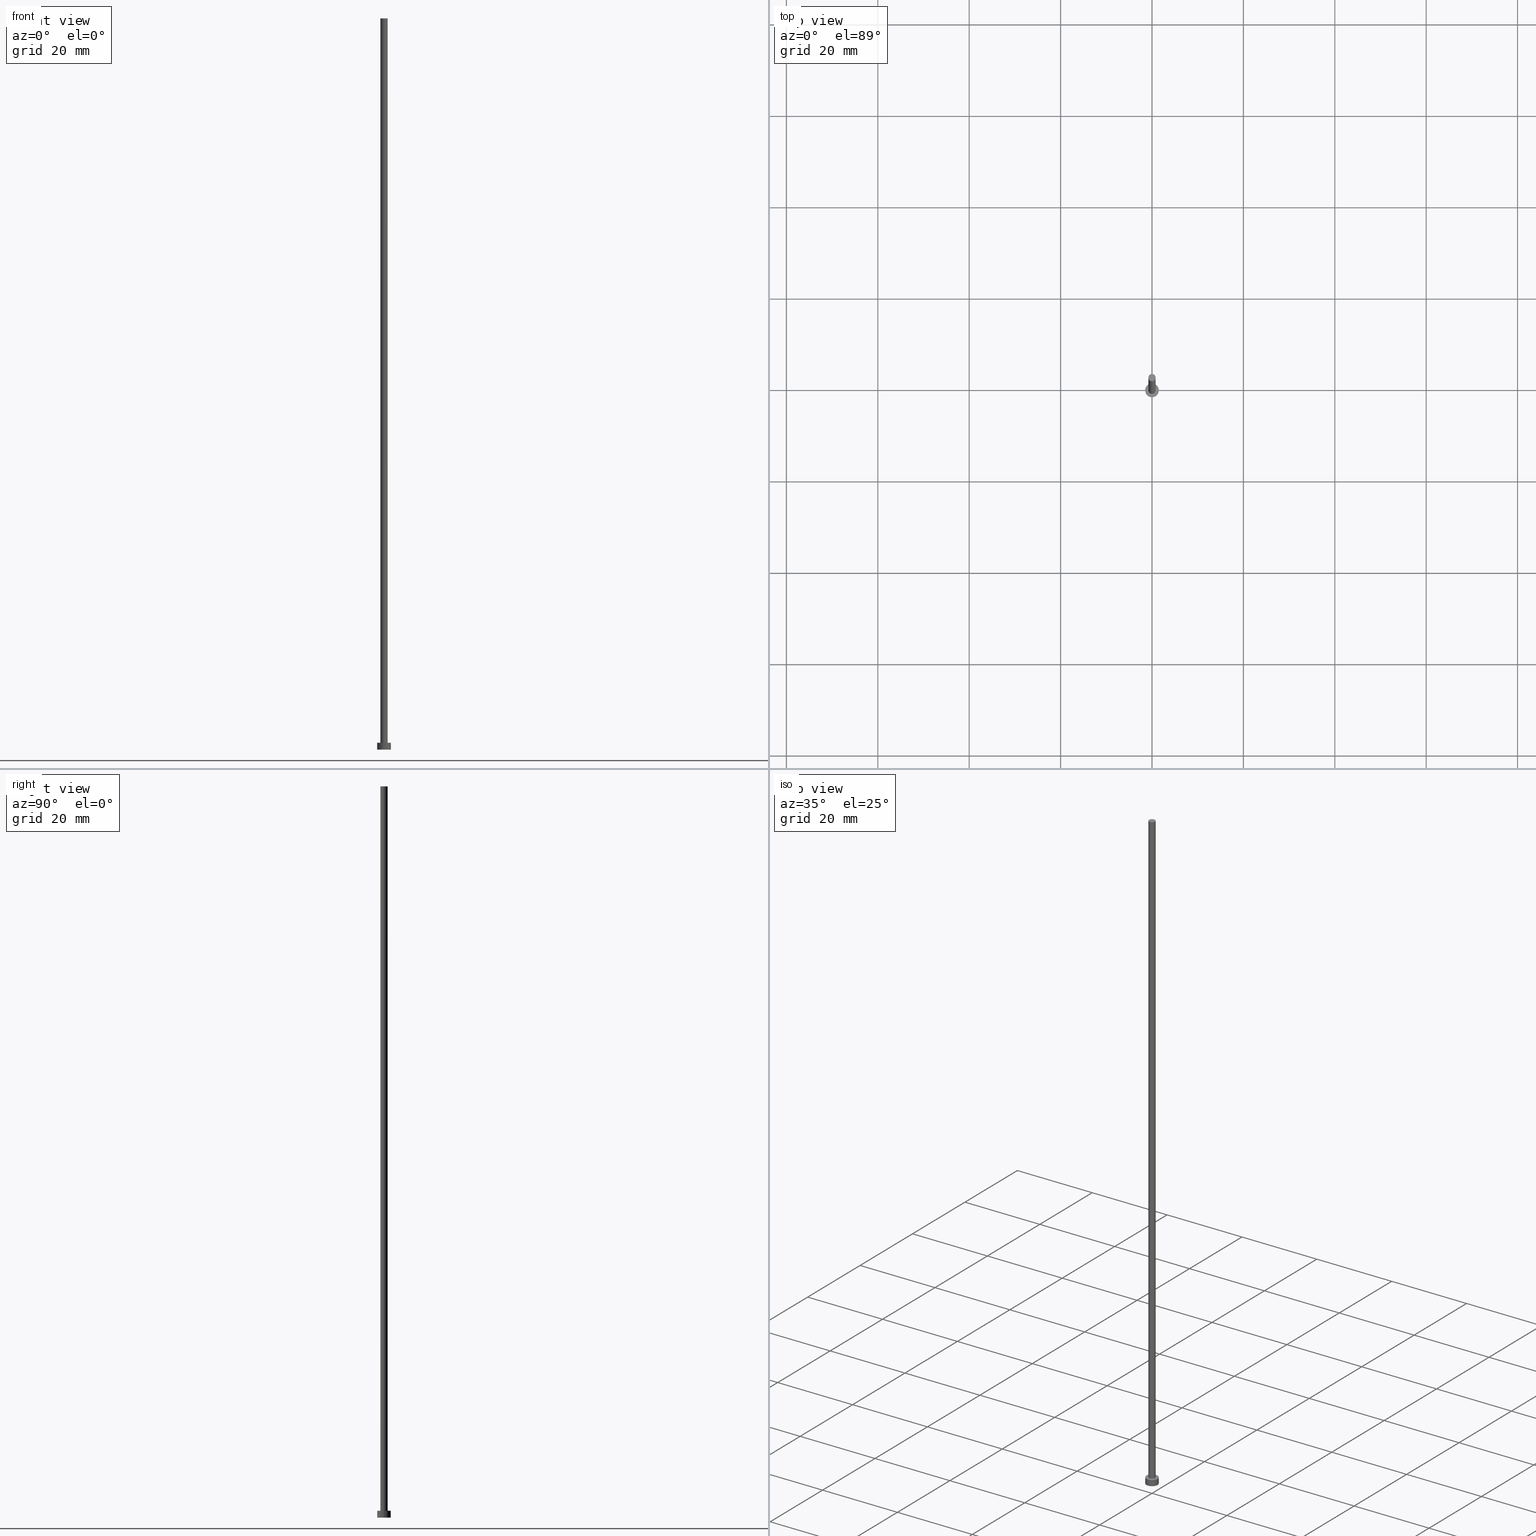
[diagram: canonical four-view strip — front | top / right | iso, engineering-drawing reading convention]
A machine part, canonical four-view strip (front | top / right | iso — engineering-drawing reading convention). The complete STEP part file that produces these views, byte-faithful:
ISO-10303-21;
HEADER;
FILE_DESCRIPTION (( 'STEP AP203' ),
    '1' );
FILE_NAME ('dc04.STEP',
    '2023-02-13T14:58:21',
    ( '' ),
    ( '' ),
    'SwSTEP 2.0',
    'SolidWorks 2019',
    '' );
FILE_SCHEMA (( 'CONFIG_CONTROL_DESIGN' ));
ENDSEC;

DATA;
#1 = CARTESIAN_POINT ( 'NONE',  ( 1.500000000000000222, 1.836970198721030181E-16, 1.500000000000000000 ) ) ;
#2 = ORIENTED_EDGE ( 'NONE', *, *, #228, .F. ) ;
#3 = EDGE_CURVE ( 'NONE', #226, #11, #110, .T. ) ;
#4 = DIRECTION ( 'NONE',  ( 1.000000000000000000, 0.000000000000000000, 0.000000000000000000 ) ) ;
#5 = EDGE_LOOP ( 'NONE', ( #200, #175 ) ) ;
#6 = DIRECTION ( 'NONE',  ( 0.000000000000000000, 0.000000000000000000, 1.000000000000000000 ) ) ;
#7 = PERSON_AND_ORGANIZATION ( #183, #17 ) ;
#8 = AXIS2_PLACEMENT_3D ( 'NONE', #168, #65, #250 ) ;
#9 = CARTESIAN_POINT ( 'NONE',  ( 0.000000000000000000, 0.000000000000000000, 1.500000000000000000 ) ) ;
#10 = EDGE_LOOP ( 'NONE', ( #89, #101, #91, #28 ) ) ;
#11 = VERTEX_POINT ( 'NONE', #165 ) ;
#12 = CARTESIAN_POINT ( 'NONE',  ( 0.000000000000000000, 0.000000000000000000, 1.500000000000000000 ) ) ;
#13 = EDGE_LOOP ( 'NONE', ( #237, #205, #172, #26 ) ) ;
#14 = ADVANCED_FACE ( 'NONE', ( #19 ), #182, .T. ) ;
#15 = ADVANCED_BREP_SHAPE_REPRESENTATION ( 'dc04', ( #16, #44 ), #73 ) ;
#16 = MANIFOLD_SOLID_BREP ( 'P�idat vysunut�m3', #222 ) ;
#17 = ORGANIZATION ( 'NEUR�EN�', 'NEUR�EN�', '' ) ;
#18 = DATE_AND_TIME ( #154, #100 ) ;
#19 = FACE_OUTER_BOUND ( 'NONE', #10, .T. ) ;
#20 = CIRCLE ( 'NONE', #174, 0.8000000000000000444 ) ;
#21 = APPROVAL_DATE_TIME ( #108, #109 ) ;
#22 = CARTESIAN_POINT ( 'NONE',  ( 0.000000000000000000, 0.000000000000000000, 160.0000000000000000 ) ) ;
#23 = EDGE_CURVE ( 'NONE', #11, #226, #248, .T. ) ;
#24 = DIRECTION ( 'NONE',  ( 0.000000000000000000, 0.000000000000000000, 1.000000000000000000 ) ) ;
#25 = APPLICATION_PROTOCOL_DEFINITION ( 'international standard', 'config_control_design', 1994, #232 ) ;
#26 = ORIENTED_EDGE ( 'NONE', *, *, #161, .F. ) ;
#27 =( LENGTH_UNIT ( ) NAMED_UNIT ( * ) SI_UNIT ( .MILLI., .METRE. ) );
#28 = ORIENTED_EDGE ( 'NONE', *, *, #208, .F. ) ;
#29 = ADVANCED_FACE ( 'NONE', ( #96 ), #177, .T. ) ;
#30 = CARTESIAN_POINT ( 'NONE',  ( 0.8000000000000000444, 9.797174393178826150E-17, 160.0000000000000000 ) ) ;
#31 = ORIENTED_EDGE ( 'NONE', *, *, #233, .F. ) ;
#32 = CARTESIAN_POINT ( 'NONE',  ( 0.000000000000000000, 0.000000000000000000, 160.0000000000000000 ) ) ;
#33 = LINE ( 'NONE', #72, #209 ) ;
#34 = VERTEX_POINT ( 'NONE', #156 ) ;
#35 = VERTEX_POINT ( 'NONE', #90 ) ;
#36 = DIRECTION ( 'NONE',  ( 1.000000000000000000, 0.000000000000000000, 0.000000000000000000 ) ) ;
#37 = ORIENTED_EDGE ( 'NONE', *, *, #3, .F. ) ;
#38 = DIRECTION ( 'NONE',  ( 0.000000000000000000, 0.000000000000000000, 1.000000000000000000 ) ) ;
#39 = CC_DESIGN_DATE_AND_TIME_ASSIGNMENT ( #238, #50, ( #253 ) ) ;
#40 = CALENDAR_DATE ( 2023, 13, 2 ) ;
#41 = COORDINATED_UNIVERSAL_TIME_OFFSET ( 1, 0, .AHEAD. ) ;
#42 = PERSON_AND_ORGANIZATION_ROLE ( 'creator' ) ;
#43 = VECTOR ( 'NONE', #140, 1000.000000000000000 ) ;
#44 = AXIS2_PLACEMENT_3D ( 'NONE', #57, #157, #150 ) ;
#45 = PERSON_AND_ORGANIZATION ( #183, #17 ) ;
#46 = CARTESIAN_POINT ( 'NONE',  ( 0.8000000000000000444, 9.797174393178826150E-17, 1.500000000000000000 ) ) ;
#47 = DIRECTION ( 'NONE',  ( -1.000000000000000000, 0.000000000000000000, 0.000000000000000000 ) ) ;
#48 = PRODUCT ( 'dc04', 'dc04', '', ( #210 ) ) ;
#49 = EDGE_CURVE ( 'NONE', #34, #119, #20, .T. ) ;
#50 = DATE_TIME_ROLE ( 'classification_date' ) ;
#51 = AXIS2_PLACEMENT_3D ( 'NONE', #54, #230, #135 ) ;
#52 = COORDINATED_UNIVERSAL_TIME_OFFSET ( 1, 0, .AHEAD. ) ;
#53 = CC_DESIGN_PERSON_AND_ORGANIZATION_ASSIGNMENT ( #139, #229, ( #113 ) ) ;
#54 = CARTESIAN_POINT ( 'NONE',  ( 0.000000000000000000, 0.000000000000000000, 1.500000000000000000 ) ) ;
#55 = COORDINATED_UNIVERSAL_TIME_OFFSET ( 1, 0, .AHEAD. ) ;
#56 = DIRECTION ( 'NONE',  ( 1.000000000000000000, 0.000000000000000000, 0.000000000000000000 ) ) ;
#57 = CARTESIAN_POINT ( 'NONE',  ( 0.000000000000000000, 0.000000000000000000, 0.000000000000000000 ) ) ;
#58 = AXIS2_PLACEMENT_3D ( 'NONE', #22, #97, #56 ) ;
#59 = AXIS2_PLACEMENT_3D ( 'NONE', #114, #187, #198 ) ;
#60 = FACE_BOUND ( 'NONE', #207, .T. ) ;
#61 = CC_DESIGN_APPROVAL ( #118, ( #113 ) ) ;
#62 = DIRECTION ( 'NONE',  ( -0.000000000000000000, -0.000000000000000000, -1.000000000000000000 ) ) ;
#63 = CC_DESIGN_PERSON_AND_ORGANIZATION_ASSIGNMENT ( #220, #124, ( #253 ) ) ;
#64 = FACE_OUTER_BOUND ( 'NONE', #129, .T. ) ;
#65 = DIRECTION ( 'NONE',  ( 0.000000000000000000, 0.000000000000000000, 1.000000000000000000 ) ) ;
#66 = VERTEX_POINT ( 'NONE', #30 ) ;
#67 = ORIENTED_EDGE ( 'NONE', *, *, #23, .T. ) ;
#68 = ADVANCED_FACE ( 'NONE', ( #122 ), #197, .F. ) ;
#69 = PLANE ( 'NONE',  #217 ) ;
#70 = CIRCLE ( 'NONE', #116, 1.500000000000000222 ) ;
#71 = DIRECTION ( 'NONE',  ( 0.000000000000000000, 0.000000000000000000, 1.000000000000000000 ) ) ;
#72 = CARTESIAN_POINT ( 'NONE',  ( 0.8000000000000000444, 9.797174393178826150E-17, 160.0000000000000000 ) ) ;
#73 =( GEOMETRIC_REPRESENTATION_CONTEXT ( 3 ) GLOBAL_UNCERTAINTY_ASSIGNED_CONTEXT ( ( #131 ) ) GLOBAL_UNIT_ASSIGNED_CONTEXT ( ( #27, #178, #218 ) ) REPRESENTATION_CONTEXT ( 'NONE', 'WORKASPACE' ) );
#74 = APPROVAL_ROLE ( '' ) ;
#75 = AXIS2_PLACEMENT_3D ( 'NONE', #93, #71, #147 ) ;
#76 = ORIENTED_EDGE ( 'NONE', *, *, #3, .T. ) ;
#77 = LINE ( 'NONE', #105, #43 ) ;
#78 = CIRCLE ( 'NONE', #121, 0.8000000000000000444 ) ;
#79 = ORIENTED_EDGE ( 'NONE', *, *, #151, .T. ) ;
#80 = PRODUCT_RELATED_PRODUCT_CATEGORY ( 'detail', '', ( #48 ) ) ;
#81 = CALENDAR_DATE ( 2023, 13, 2 ) ;
#82 = DATE_AND_TIME ( #81, #185 ) ;
#83 = LOCAL_TIME ( 15, 58, 21.00000000000000000, #221 ) ;
#84 = CARTESIAN_POINT ( 'NONE',  ( 0.000000000000000000, 0.000000000000000000, 160.0000000000000000 ) ) ;
#85 = DIRECTION ( 'NONE',  ( -1.000000000000000000, 0.000000000000000000, 0.000000000000000000 ) ) ;
#86 = DIRECTION ( 'NONE',  ( 1.000000000000000000, 0.000000000000000000, 0.000000000000000000 ) ) ;
#87 = AXIS2_PLACEMENT_3D ( 'NONE', #255, #6, #4 ) ;
#88 = PERSON_AND_ORGANIZATION_ROLE ( 'design_owner' ) ;
#89 = ORIENTED_EDGE ( 'NONE', *, *, #245, .F. ) ;
#90 = CARTESIAN_POINT ( 'NONE',  ( -0.8000000000000000444, 0.000000000000000000, 160.0000000000000000 ) ) ;
#91 = ORIENTED_EDGE ( 'NONE', *, *, #228, .T. ) ;
#92 = CALENDAR_DATE ( 2023, 13, 2 ) ;
#93 = CARTESIAN_POINT ( 'NONE',  ( 0.000000000000000000, 0.000000000000000000, 0.000000000000000000 ) ) ;
#94 = ORIENTED_EDGE ( 'NONE', *, *, #164, .F. ) ;
#95 = CC_DESIGN_SECURITY_CLASSIFICATION ( #253, ( #202 ) ) ;
#96 = FACE_OUTER_BOUND ( 'NONE', #212, .T. ) ;
#97 = DIRECTION ( 'NONE',  ( 0.000000000000000000, 0.000000000000000000, 1.000000000000000000 ) ) ;
#98 = DIRECTION ( 'NONE',  ( 0.000000000000000000, 0.000000000000000000, 1.000000000000000000 ) ) ;
#99 = DIRECTION ( 'NONE',  ( 0.000000000000000000, 0.000000000000000000, 1.000000000000000000 ) ) ;
#100 = LOCAL_TIME ( 15, 58, 21.00000000000000000, #55 ) ;
#101 = ORIENTED_EDGE ( 'NONE', *, *, #127, .T. ) ;
#102 = PRODUCT_DEFINITION_SHAPE ( 'NONE', 'NONE',  #113 ) ;
#103 = ADVANCED_FACE ( 'NONE', ( #169 ), #104, .T. ) ;
#104 = CYLINDRICAL_SURFACE ( 'NONE', #51, 1.500000000000000222 ) ;
#105 = CARTESIAN_POINT ( 'NONE',  ( -0.8000000000000000444, 0.000000000000000000, 160.0000000000000000 ) ) ;
#106 = CC_DESIGN_PERSON_AND_ORGANIZATION_ASSIGNMENT ( #188, #88, ( #48 ) ) ;
#107 = ORIENTED_EDGE ( 'NONE', *, *, #245, .T. ) ;
#108 = DATE_AND_TIME ( #40, #160 ) ;
#109 = APPROVAL ( #133, 'NEUR�EN�' ) ;
#110 = CIRCLE ( 'NONE', #87, 1.500000000000000222 ) ;
#111 = APPROVAL_ROLE ( '' ) ;
#112 = EDGE_LOOP ( 'NONE', ( #192, #31, #173, #247 ) ) ;
#113 = PRODUCT_DEFINITION ( 'NEZN�M�', '', #202, #203 ) ;
#114 = CARTESIAN_POINT ( 'NONE',  ( 0.000000000000000000, 0.000000000000000000, 0.000000000000000000 ) ) ;
#115 = CARTESIAN_POINT ( 'NONE',  ( 0.000000000000000000, 0.000000000000000000, 160.0000000000000000 ) ) ;
#116 = AXIS2_PLACEMENT_3D ( 'NONE', #225, #38, #36 ) ;
#117 = CC_DESIGN_APPROVAL ( #138, ( #253 ) ) ;
#118 = APPROVAL ( #244, 'NEUR�EN�' ) ;
#119 = VERTEX_POINT ( 'NONE', #46 ) ;
#120 = DIRECTION ( 'NONE',  ( 1.000000000000000000, 0.000000000000000000, 0.000000000000000000 ) ) ;
#121 = AXIS2_PLACEMENT_3D ( 'NONE', #32, #24, #120 ) ;
#122 = FACE_OUTER_BOUND ( 'NONE', #5, .T. ) ;
#123 = CARTESIAN_POINT ( 'NONE',  ( -1.500000000000000222, 0.000000000000000000, 1.500000000000000000 ) ) ;
#124 = PERSON_AND_ORGANIZATION_ROLE ( 'classification_officer' ) ;
#125 = CARTESIAN_POINT ( 'NONE',  ( 0.000000000000000000, 0.000000000000000000, 160.0000000000000000 ) ) ;
#126 = LOCAL_TIME ( 15, 58, 21.00000000000000000, #214 ) ;
#127 = EDGE_CURVE ( 'NONE', #66, #119, #33, .T. ) ;
#128 = LINE ( 'NONE', #1, #134 ) ;
#129 = EDGE_LOOP ( 'NONE', ( #76, #67 ) ) ;
#130 = AXIS2_PLACEMENT_3D ( 'NONE', #115, #152, #85 ) ;
#131 = UNCERTAINTY_MEASURE_WITH_UNIT (LENGTH_MEASURE( 1.000000000000000082E-05 ), #27, 'distance_accuracy_value', 'NONE');
#132 = APPROVAL_PERSON_ORGANIZATION ( #45, #118, #186 ) ;
#133 = APPROVAL_STATUS ( 'not_yet_approved' ) ;
#134 = VECTOR ( 'NONE', #204, 1000.000000000000000 ) ;
#135 = DIRECTION ( 'NONE',  ( -1.000000000000000000, 0.000000000000000000, 0.000000000000000000 ) ) ;
#136 = CIRCLE ( 'NONE', #195, 0.8000000000000000444 ) ;
#137 = APPLICATION_CONTEXT ( 'configuration controlled 3d designs of mechanical parts and assemblies' ) ;
#138 = APPROVAL ( #201, 'NEUR�EN�' ) ;
#139 = PERSON_AND_ORGANIZATION ( #183, #17 ) ;
#140 = DIRECTION ( 'NONE',  ( -0.000000000000000000, -0.000000000000000000, -1.000000000000000000 ) ) ;
#141 = DATE_AND_TIME ( #92, #126 ) ;
#142 = DIRECTION ( 'NONE',  ( 1.000000000000000000, 0.000000000000000000, 0.000000000000000000 ) ) ;
#143 = DIRECTION ( 'NONE',  ( 0.000000000000000000, 0.000000000000000000, 1.000000000000000000 ) ) ;
#144 = LINE ( 'NONE', #251, #239 ) ;
#145 = SECURITY_CLASSIFICATION_LEVEL ( 'unclassified' ) ;
#146 = APPROVAL_DATE_TIME ( #141, #138 ) ;
#147 = DIRECTION ( 'NONE',  ( 1.000000000000000000, 0.000000000000000000, -0.000000000000000000 ) ) ;
#148 = AXIS2_PLACEMENT_3D ( 'NONE', #125, #99, #179 ) ;
#149 = SHAPE_DEFINITION_REPRESENTATION ( #102, #15 ) ;
#150 = DIRECTION ( 'NONE',  ( 1.000000000000000000, 0.000000000000000000, 0.000000000000000000 ) ) ;
#151 = EDGE_CURVE ( 'NONE', #252, #215, #70, .T. ) ;
#152 = DIRECTION ( 'NONE',  ( -0.000000000000000000, -0.000000000000000000, -1.000000000000000000 ) ) ;
#153 = ORIENTED_EDGE ( 'NONE', *, *, #233, .T. ) ;
#154 = CALENDAR_DATE ( 2023, 13, 2 ) ;
#155 = CC_DESIGN_APPROVAL ( #109, ( #202 ) ) ;
#156 = CARTESIAN_POINT ( 'NONE',  ( -0.8000000000000000444, 0.000000000000000000, 1.500000000000000000 ) ) ;
#157 = DIRECTION ( 'NONE',  ( 0.000000000000000000, 0.000000000000000000, 1.000000000000000000 ) ) ;
#158 = CARTESIAN_POINT ( 'NONE',  ( 0.000000000000000000, 0.000000000000000000, 1.500000000000000000 ) ) ;
#159 = FACE_OUTER_BOUND ( 'NONE', #249, .T. ) ;
#160 = LOCAL_TIME ( 15, 58, 21.00000000000000000, #52 ) ;
#161 = EDGE_CURVE ( 'NONE', #226, #252, #144, .T. ) ;
#162 = ADVANCED_FACE ( 'NONE', ( #159 ), #236, .T. ) ;
#163 = APPROVAL_PERSON_ORGANIZATION ( #242, #109, #111 ) ;
#164 = EDGE_CURVE ( 'NONE', #11, #215, #128, .T. ) ;
#165 = CARTESIAN_POINT ( 'NONE',  ( 1.500000000000000222, 1.836970198721030181E-16, 1.500000000000000000 ) ) ;
#166 = AXIS2_PLACEMENT_3D ( 'NONE', #84, #227, #180 ) ;
#167 = DATE_TIME_ROLE ( 'creation_date' ) ;
#168 = CARTESIAN_POINT ( 'NONE',  ( 0.000000000000000000, 0.000000000000000000, 1.500000000000000000 ) ) ;
#169 = FACE_OUTER_BOUND ( 'NONE', #13, .T. ) ;
#170 = CYLINDRICAL_SURFACE ( 'NONE', #166, 0.8000000000000000444 ) ;
#171 = CARTESIAN_POINT ( 'NONE',  ( 1.500000000000000222, 1.836970198721030181E-16, 0.000000000000000000 ) ) ;
#172 = ORIENTED_EDGE ( 'NONE', *, *, #241, .T. ) ;
#173 = ORIENTED_EDGE ( 'NONE', *, *, #208, .T. ) ;
#174 = AXIS2_PLACEMENT_3D ( 'NONE', #158, #213, #142 ) ;
#175 = ORIENTED_EDGE ( 'NONE', *, *, #241, .F. ) ;
#176 = ADVANCED_FACE ( 'NONE', ( #193 ), #170, .T. ) ;
#177 = CYLINDRICAL_SURFACE ( 'NONE', #189, 1.500000000000000222 ) ;
#178 =( NAMED_UNIT ( * ) PLANE_ANGLE_UNIT ( ) SI_UNIT ( $, .RADIAN. ) );
#179 = DIRECTION ( 'NONE',  ( 1.000000000000000000, 0.000000000000000000, -0.000000000000000000 ) ) ;
#180 = DIRECTION ( 'NONE',  ( -1.000000000000000000, 0.000000000000000000, 0.000000000000000000 ) ) ;
#181 = CIRCLE ( 'NONE', #59, 1.500000000000000222 ) ;
#182 = CYLINDRICAL_SURFACE ( 'NONE', #130, 0.8000000000000000444 ) ;
#183 = PERSON ( 'NEUR�EN�', 'NEUR�EN�', 'NEUR�EN�', ('NEUR�EN�'), ('NEUR�EN�'), ('NEUR�EN�') ) ;
#184 = CC_DESIGN_DATE_AND_TIME_ASSIGNMENT ( #18, #167, ( #113 ) ) ;
#185 = LOCAL_TIME ( 15, 58, 21.00000000000000000, #41 ) ;
#186 = APPROVAL_ROLE ( '' ) ;
#187 = DIRECTION ( 'NONE',  ( 0.000000000000000000, 0.000000000000000000, 1.000000000000000000 ) ) ;
#188 = PERSON_AND_ORGANIZATION ( #183, #17 ) ;
#189 = AXIS2_PLACEMENT_3D ( 'NONE', #9, #62, #47 ) ;
#190 = ORIENTED_EDGE ( 'NONE', *, *, #49, .F. ) ;
#191 = ORIENTED_EDGE ( 'NONE', *, *, #161, .T. ) ;
#192 = ORIENTED_EDGE ( 'NONE', *, *, #127, .F. ) ;
#193 = FACE_OUTER_BOUND ( 'NONE', #112, .T. ) ;
#194 = DIRECTION ( 'NONE',  ( 1.000000000000000000, 0.000000000000000000, -0.000000000000000000 ) ) ;
#195 = AXIS2_PLACEMENT_3D ( 'NONE', #216, #143, #86 ) ;
#196 = PERSON_AND_ORGANIZATION_ROLE ( 'design_supplier' ) ;
#197 = PLANE ( 'NONE',  #75 ) ;
#198 = DIRECTION ( 'NONE',  ( 1.000000000000000000, 0.000000000000000000, 0.000000000000000000 ) ) ;
#199 = CALENDAR_DATE ( 2023, 13, 2 ) ;
#200 = ORIENTED_EDGE ( 'NONE', *, *, #151, .F. ) ;
#201 = APPROVAL_STATUS ( 'not_yet_approved' ) ;
#202 = PRODUCT_DEFINITION_FORMATION_WITH_SPECIFIED_SOURCE ( 'LIBOVOLN�', '', #48, .NOT_KNOWN. ) ;
#203 = DESIGN_CONTEXT ( 'detailed design', #137, 'design' ) ;
#204 = DIRECTION ( 'NONE',  ( -0.000000000000000000, -0.000000000000000000, -1.000000000000000000 ) ) ;
#205 = ORIENTED_EDGE ( 'NONE', *, *, #164, .T. ) ;
#206 = DIRECTION ( 'NONE',  ( -0.000000000000000000, -0.000000000000000000, -1.000000000000000000 ) ) ;
#207 = EDGE_LOOP ( 'NONE', ( #190, #2 ) ) ;
#208 = EDGE_CURVE ( 'NONE', #35, #34, #77, .T. ) ;
#209 = VECTOR ( 'NONE', #224, 1000.000000000000000 ) ;
#210 = MECHANICAL_CONTEXT ( 'NONE', #232, 'mechanical' ) ;
#211 = CC_DESIGN_PERSON_AND_ORGANIZATION_ASSIGNMENT ( #231, #42, ( #202 ) ) ;
#212 = EDGE_LOOP ( 'NONE', ( #94, #37, #191, #79 ) ) ;
#213 = DIRECTION ( 'NONE',  ( 0.000000000000000000, 0.000000000000000000, 1.000000000000000000 ) ) ;
#214 = COORDINATED_UNIVERSAL_TIME_OFFSET ( 1, 0, .AHEAD. ) ;
#215 = VERTEX_POINT ( 'NONE', #171 ) ;
#216 = CARTESIAN_POINT ( 'NONE',  ( 0.000000000000000000, 0.000000000000000000, 1.500000000000000000 ) ) ;
#217 = AXIS2_PLACEMENT_3D ( 'NONE', #12, #98, #194 ) ;
#218 =( NAMED_UNIT ( * ) SI_UNIT ( $, .STERADIAN. ) SOLID_ANGLE_UNIT ( ) );
#219 = CIRCLE ( 'NONE', #58, 0.8000000000000000444 ) ;
#220 = PERSON_AND_ORGANIZATION ( #183, #17 ) ;
#221 = COORDINATED_UNIVERSAL_TIME_OFFSET ( 1, 0, .AHEAD. ) ;
#222 = CLOSED_SHELL ( 'NONE', ( #14, #103, #29, #254, #68, #176, #162 ) ) ;
#223 = PERSON_AND_ORGANIZATION ( #183, #17 ) ;
#224 = DIRECTION ( 'NONE',  ( -0.000000000000000000, -0.000000000000000000, -1.000000000000000000 ) ) ;
#225 = CARTESIAN_POINT ( 'NONE',  ( 0.000000000000000000, 0.000000000000000000, 0.000000000000000000 ) ) ;
#226 = VERTEX_POINT ( 'NONE', #123 ) ;
#227 = DIRECTION ( 'NONE',  ( -0.000000000000000000, -0.000000000000000000, -1.000000000000000000 ) ) ;
#228 = EDGE_CURVE ( 'NONE', #119, #34, #136, .T. ) ;
#229 = PERSON_AND_ORGANIZATION_ROLE ( 'creator' ) ;
#230 = DIRECTION ( 'NONE',  ( -0.000000000000000000, -0.000000000000000000, -1.000000000000000000 ) ) ;
#231 = PERSON_AND_ORGANIZATION ( #183, #17 ) ;
#232 = APPLICATION_CONTEXT ( 'configuration controlled 3d designs of mechanical parts and assemblies' ) ;
#233 = EDGE_CURVE ( 'NONE', #35, #66, #78, .T. ) ;
#234 = APPROVAL_PERSON_ORGANIZATION ( #223, #138, #74 ) ;
#235 = APPLICATION_PROTOCOL_DEFINITION ( 'international standard', 'config_control_design', 1994, #137 ) ;
#236 = PLANE ( 'NONE',  #148 ) ;
#237 = ORIENTED_EDGE ( 'NONE', *, *, #23, .F. ) ;
#238 = DATE_AND_TIME ( #199, #83 ) ;
#239 = VECTOR ( 'NONE', #206, 1000.000000000000000 ) ;
#240 = CC_DESIGN_PERSON_AND_ORGANIZATION_ASSIGNMENT ( #7, #196, ( #202 ) ) ;
#241 = EDGE_CURVE ( 'NONE', #215, #252, #181, .T. ) ;
#242 = PERSON_AND_ORGANIZATION ( #183, #17 ) ;
#243 = APPROVAL_DATE_TIME ( #82, #118 ) ;
#244 = APPROVAL_STATUS ( 'not_yet_approved' ) ;
#245 = EDGE_CURVE ( 'NONE', #66, #35, #219, .T. ) ;
#246 = CARTESIAN_POINT ( 'NONE',  ( -1.500000000000000222, 0.000000000000000000, 0.000000000000000000 ) ) ;
#247 = ORIENTED_EDGE ( 'NONE', *, *, #49, .T. ) ;
#248 = CIRCLE ( 'NONE', #8, 1.500000000000000222 ) ;
#249 = EDGE_LOOP ( 'NONE', ( #153, #107 ) ) ;
#250 = DIRECTION ( 'NONE',  ( 1.000000000000000000, 0.000000000000000000, 0.000000000000000000 ) ) ;
#251 = CARTESIAN_POINT ( 'NONE',  ( -1.500000000000000222, 0.000000000000000000, 1.500000000000000000 ) ) ;
#252 = VERTEX_POINT ( 'NONE', #246 ) ;
#253 = SECURITY_CLASSIFICATION ( '', '', #145 ) ;
#254 = ADVANCED_FACE ( 'NONE', ( #60, #64 ), #69, .T. ) ;
#255 = CARTESIAN_POINT ( 'NONE',  ( 0.000000000000000000, 0.000000000000000000, 1.500000000000000000 ) ) ;
ENDSEC;
END-ISO-10303-21;
